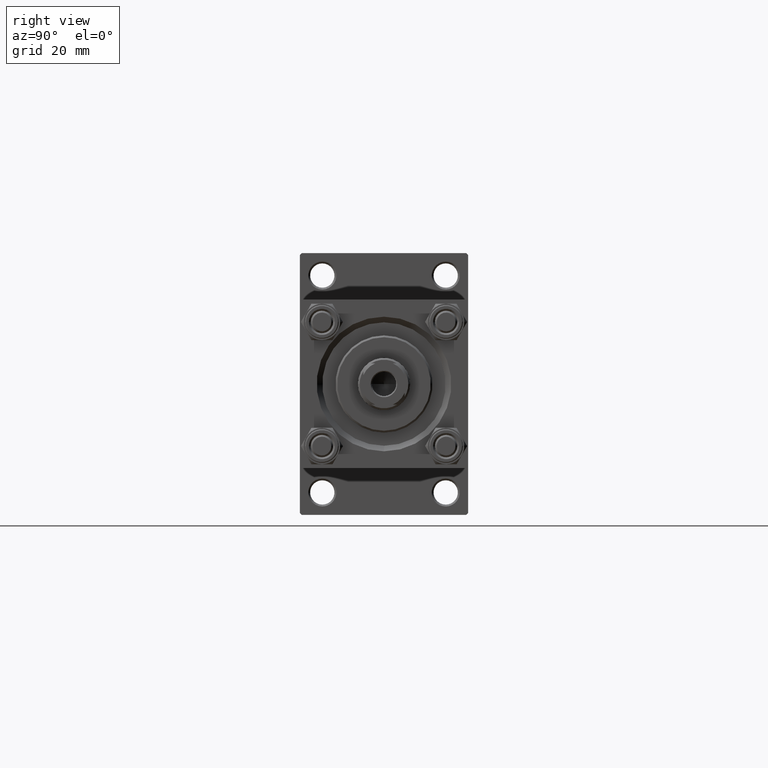
[diagram: clean part render]
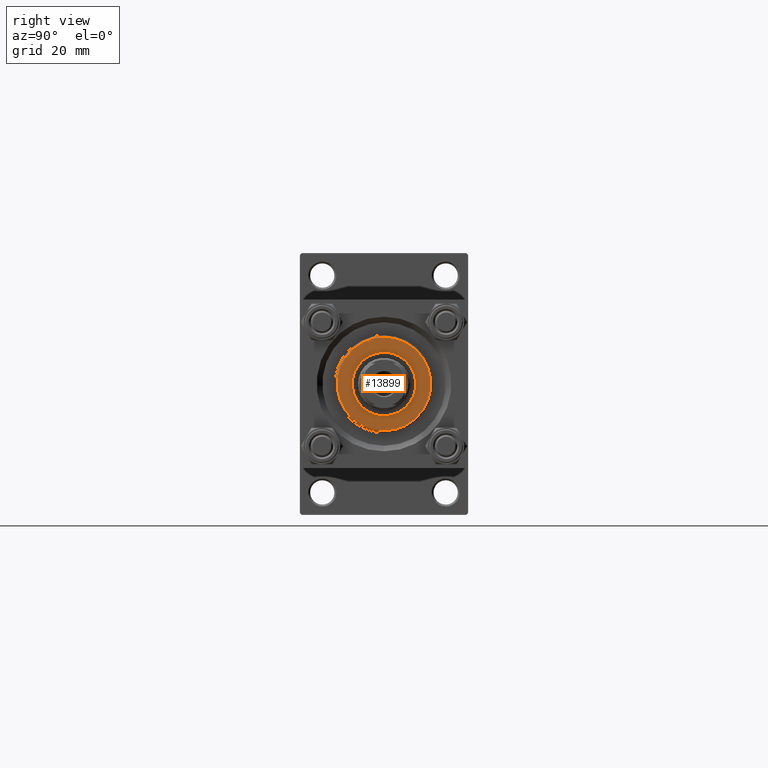
[diagram: same view with one face highlighted and labeled with its STEP entity id]
A machine part, right view. The second image highlights one B-rep face of the part: STEP entity #13899.
In plain terms, the highlighted planar face has unit normal (1, 0, 0).
Its self-contained STEP definition (entity closure, byte-faithful):
#24 = VERTEX_POINT ( 'NONE', #34730 ) ;
#164 = DIRECTION ( 'NONE',  ( 0.000000000000000000, 0.000000000000000000, 1.000000000000000000 ) ) ;
#351 = AXIS2_PLACEMENT_3D ( 'NONE', #17469, #39734, #32889 ) ;
#1377 = EDGE_LOOP ( 'NONE', ( #2270, #29625 ) ) ;
#1911 = CARTESIAN_POINT ( 'NONE',  ( 0.000000000000000000, 0.000000000000000000, 36.69999999999999574 ) ) ;
#2270 = ORIENTED_EDGE ( 'NONE', *, *, #13758, .F. ) ;
#2345 = ORIENTED_EDGE ( 'NONE', *, *, #6082, .T. ) ;
#3720 = PLANE ( 'NONE',  #31106 ) ;
#4882 = CARTESIAN_POINT ( 'NONE',  ( 8.500000000000000000, 0.000000000000000000, 36.69999999999999574 ) ) ;
#5176 = AXIS2_PLACEMENT_3D ( 'NONE', #9422, #32394, #43293 ) ;
#5934 = VERTEX_POINT ( 'NONE', #4882 ) ;
#6082 = EDGE_CURVE ( 'NONE', #24, #31893, #26131, .T. ) ;
#9221 = ORIENTED_EDGE ( 'NONE', *, *, #9439, .T. ) ;
#9422 = CARTESIAN_POINT ( 'NONE',  ( 0.000000000000000000, 0.000000000000000000, 36.69999999999999574 ) ) ;
#9439 = EDGE_CURVE ( 'NONE', #31893, #24, #26931, .T. ) ;
#13758 = EDGE_CURVE ( 'NONE', #5934, #36349, #34333, .T. ) ;
#13899 = ADVANCED_FACE ( 'NONE', ( #26667, #26168 ), #3720, .T. ) ;
#16313 = CARTESIAN_POINT ( 'NONE',  ( -8.500000000000000000, 1.040949779275250140E-15, 36.69999999999999574 ) ) ;
#16534 = DIRECTION ( 'NONE',  ( 1.000000000000000000, 0.000000000000000000, 0.000000000000000000 ) ) ;
#17469 = CARTESIAN_POINT ( 'NONE',  ( 0.000000000000000000, 0.000000000000000000, 36.69999999999999574 ) ) ;
#19194 = DIRECTION ( 'NONE',  ( 0.000000000000000000, 0.000000000000000000, 1.000000000000000000 ) ) ;
#20498 = CARTESIAN_POINT ( 'NONE',  ( -12.50000000000001066, 0.000000000000000000, 36.69999999999999574 ) ) ;
#21789 = CIRCLE ( 'NONE', #40373, 8.500000000000000000 ) ;
#22718 = EDGE_LOOP ( 'NONE', ( #9221, #2345 ) ) ;
#26131 = CIRCLE ( 'NONE', #351, 12.50000000000001066 ) ;
#26168 = FACE_OUTER_BOUND ( 'NONE', #22718, .T. ) ;
#26667 = FACE_BOUND ( 'NONE', #1377, .T. ) ;
#26931 = CIRCLE ( 'NONE', #5176, 12.50000000000001066 ) ;
#27037 = CARTESIAN_POINT ( 'NONE',  ( 0.000000000000000000, 0.000000000000000000, 36.69999999999999574 ) ) ;
#29625 = ORIENTED_EDGE ( 'NONE', *, *, #31551, .F. ) ;
#31106 = AXIS2_PLACEMENT_3D ( 'NONE', #34258, #164, #42102 ) ;
#31551 = EDGE_CURVE ( 'NONE', #36349, #5934, #21789, .T. ) ;
#31893 = VERTEX_POINT ( 'NONE', #20498 ) ;
#32394 = DIRECTION ( 'NONE',  ( 0.000000000000000000, 0.000000000000000000, 1.000000000000000000 ) ) ;
#32889 = DIRECTION ( 'NONE',  ( 1.000000000000000000, 0.000000000000000000, 0.000000000000000000 ) ) ;
#34258 = CARTESIAN_POINT ( 'NONE',  ( 0.000000000000000000, 0.000000000000000000, 36.69999999999999574 ) ) ;
#34333 = CIRCLE ( 'NONE', #40015, 8.500000000000000000 ) ;
#34621 = DIRECTION ( 'NONE',  ( 1.000000000000000000, 0.000000000000000000, 0.000000000000000000 ) ) ;
#34730 = CARTESIAN_POINT ( 'NONE',  ( 12.50000000000001066, 1.561424668912876097E-15, 36.69999999999999574 ) ) ;
#36349 = VERTEX_POINT ( 'NONE', #16313 ) ;
#39734 = DIRECTION ( 'NONE',  ( 0.000000000000000000, 0.000000000000000000, 1.000000000000000000 ) ) ;
#40015 = AXIS2_PLACEMENT_3D ( 'NONE', #27037, #19194, #34621 ) ;
#40373 = AXIS2_PLACEMENT_3D ( 'NONE', #1911, #47642, #16534 ) ;
#42102 = DIRECTION ( 'NONE',  ( 1.000000000000000000, 0.000000000000000000, -0.000000000000000000 ) ) ;
#43293 = DIRECTION ( 'NONE',  ( 1.000000000000000000, 0.000000000000000000, 0.000000000000000000 ) ) ;
#47642 = DIRECTION ( 'NONE',  ( 0.000000000000000000, 0.000000000000000000, 1.000000000000000000 ) ) ;